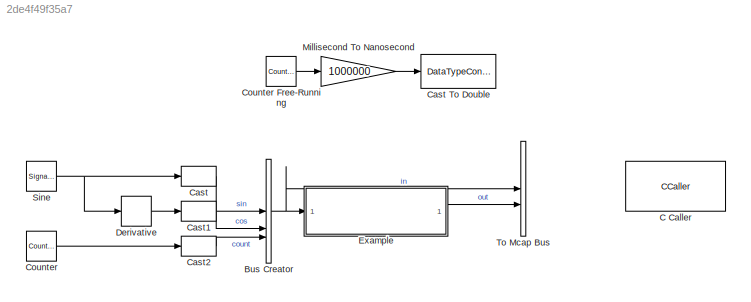
MODEL slx_2de4f49f35a7
KIND model
CONFIG AbsTol = auto
CONFIG EnableMultiTasking = off
CONFIG FixedStep = 0.001
CONFIG MaxStep = auto
CONFIG MinStep = auto
CONFIG RelTol = 1e-3
CONFIG SampleTimeConstraint = Unconstrained
CONFIG SolverName = FixedStepAuto
CONFIG StartTime = 0.0
CONFIG StopTime = 10.0
BLOCK [BusCreator] Bus Creator
  DisplayOption = bar
  InheritFromInputs = on
  Inputs = 3
BLOCK [CCaller] C Caller
  Commented = on
  FunctionName = ToMcap
BLOCK [DataTypeConversion] Cast
  RndMeth = Floor
  SaturateOnIntegerOverflow = off
BLOCK [DataTypeConversion] Cast To Double
  Commented = on
  OutDataTypeStr = double
  RndMeth = Floor
  SaturateOnIntegerOverflow = off
BLOCK [DataTypeConversion] Cast1
  RndMeth = Floor
  SaturateOnIntegerOverflow = off
BLOCK [DataTypeConversion] Cast2
  RndMeth = Floor
  SaturateOnIntegerOverflow = off
BLOCK [Reference] Counter  REF=simulink/Sources/Counter
Free-Running
  SourceBlock = simulink/Sources/Counter\nFree-Running
  SourceType = Counter Free-Running
BLOCK [Reference] Counter Free-Running  REF=simulink/Sources/Counter
Free-Running
  Commented = on
  SourceBlock = simulink/Sources/Counter\nFree-Running
  SourceType = Counter Free-Running
BLOCK [Derivative] Derivative
BLOCK [ModelReference] Example
  ModelNameDialog = example.slx
  ModelReferenceVersion = 4.64
BLOCK [Gain] Millisecond To Nanosecond
  Commented = on
  Gain = 1000000
  OutDataTypeStr = uint64
BLOCK [SignalGenerator] Sine
  Units = rad/sec
BLOCK [BusCreator] To Mcap Bus
  DisplayOption = bar
  InheritFromInputs = on
  Inputs = 2
NET Bus Creator:1 -> Example:1, To Mcap Bus:1
LINE Cast1:1 -> Bus Creator:2
LINE Cast2:1 -> Bus Creator:3
LINE Cast:1 -> Bus Creator:1
LINE Counter Free-Running:1 -> Millisecond To Nanosecond:1
LINE Counter:1 -> Cast2:1
LINE Derivative:1 -> Cast1:1
LINE Example:1 -> To Mcap Bus:2
LINE Millisecond To Nanosecond:1 -> Cast To Double:1
NET Sine:1 -> Cast:1, Derivative:1
note: NET lines group one-source signal fan-out (src -> all destinations, sorted); 1:1 wires keep LINE
